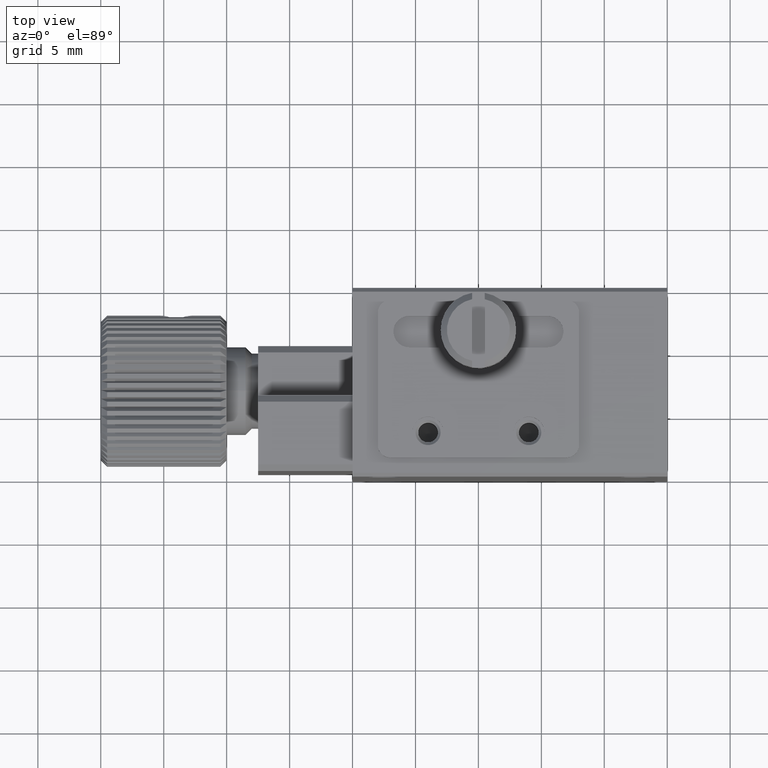
[diagram: clean part render]
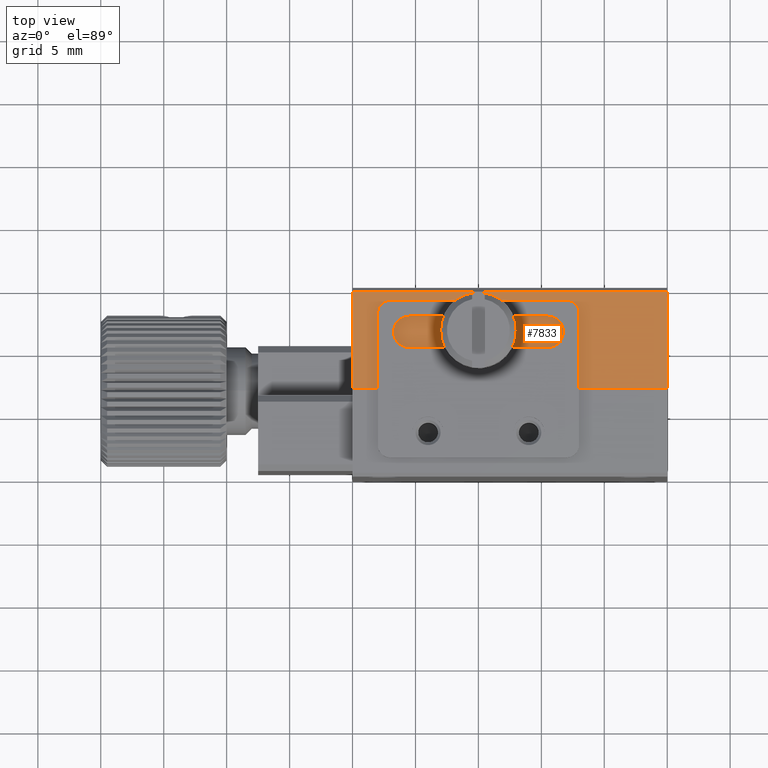
[diagram: same view with one face highlighted and labeled with its STEP entity id]
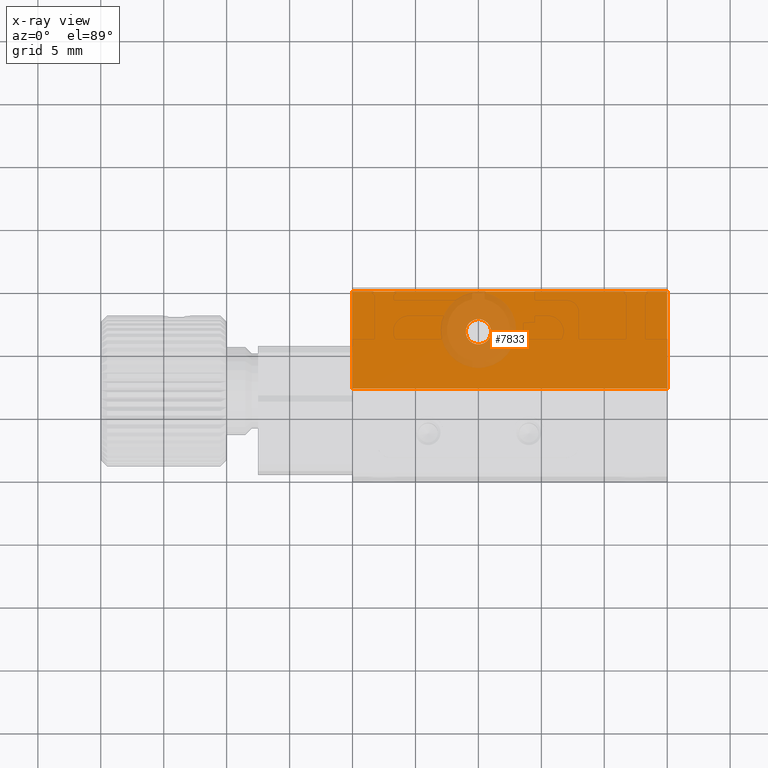
[diagram: x-ray of the same camera — body ghosted, the highlighted face saturated]
A machine part, top view. The second image highlights one B-rep face of the part: STEP entity #7833.
The next image is the same camera in x-ray: the body ghosted, the highlighted face saturated — about 13% of this face is hidden behind the body in this view.
In plain terms, the highlighted planar face has unit normal (0, -0, -1).
Its self-contained STEP definition (entity closure, byte-faithful):
#242 = CARTESIAN_POINT ( 'NONE',  ( 25.00000000000000000, 14.70000000000004725, -3.903127820947815962E-15 ) ) ;
#495 = VERTEX_POINT ( 'NONE', #10311 ) ;
#528 = VECTOR ( 'NONE', #5056, 1000.000000000000000 ) ;
#653 = VERTEX_POINT ( 'NONE', #2074 ) ;
#714 = DIRECTION ( 'NONE',  ( 0.000000000000000000, -1.000000000000000000, -0.000000000000000000 ) ) ;
#1061 = LINE ( 'NONE', #2820, #6210 ) ;
#1217 = EDGE_CURVE ( 'NONE', #495, #5687, #5470, .T. ) ;
#1328 = AXIS2_PLACEMENT_3D ( 'NONE', #6651, #10511, #1969 ) ;
#1402 = VERTEX_POINT ( 'NONE', #7071 ) ;
#1514 = VECTOR ( 'NONE', #7286, 1000.000000000000000 ) ;
#1969 = DIRECTION ( 'NONE',  ( -1.000000000000000000, 0.000000000000000000, 0.000000000000000000 ) ) ;
#2074 = CARTESIAN_POINT ( 'NONE',  ( 25.00000000000000000, 14.70000000000004725, -3.693551541006367955E-15 ) ) ;
#2288 = EDGE_LOOP ( 'NONE', ( #7051, #8464, #2677, #3765 ) ) ;
#2677 = ORIENTED_EDGE ( 'NONE', *, *, #5989, .T. ) ;
#2820 = CARTESIAN_POINT ( 'NONE',  ( 25.00000000000000000, 15.00000000000000000, -3.632077277826439854E-15 ) ) ;
#3207 = VECTOR ( 'NONE', #714, 1000.000000000000000 ) ;
#3313 = LINE ( 'NONE', #9275, #1514 ) ;
#3765 = ORIENTED_EDGE ( 'NONE', *, *, #1217, .T. ) ;
#3936 = LINE ( 'NONE', #242, #528 ) ;
#4971 = ORIENTED_EDGE ( 'NONE', *, *, #6275, .F. ) ;
#5056 = DIRECTION ( 'NONE',  ( -1.000000000000000000, -0.000000000000000000, -0.000000000000000000 ) ) ;
#5470 = LINE ( 'NONE', #9256, #3207 ) ;
#5540 = DIRECTION ( 'NONE',  ( 0.000000000000000000, -6.361801554012190564E-17, -1.000000000000000000 ) ) ;
#5596 = CARTESIAN_POINT ( 'NONE',  ( 25.00000000000000000, 14.70000000000004725, -3.552713678800500140E-15 ) ) ;
#5687 = VERTEX_POINT ( 'NONE', #8233 ) ;
#5792 = EDGE_LOOP ( 'NONE', ( #4971 ) ) ;
#5989 = EDGE_CURVE ( 'NONE', #653, #495, #3936, .T. ) ;
#6210 = VECTOR ( 'NONE', #8426, 1000.000000000000000 ) ;
#6275 = EDGE_CURVE ( 'NONE', #9776, #9776, #7507, .T. ) ;
#6651 = CARTESIAN_POINT ( 'NONE',  ( 10.00000000000000000, 11.50000000000000000, 0.000000000000000000 ) ) ;
#7051 = ORIENTED_EDGE ( 'NONE', *, *, #7215, .F. ) ;
#7071 = CARTESIAN_POINT ( 'NONE',  ( 25.00000000000000000, 6.999999999999999112, -3.205160538812779033E-15 ) ) ;
#7112 = AXIS2_PLACEMENT_3D ( 'NONE', #5596, #5540, #12258 ) ;
#7215 = EDGE_CURVE ( 'NONE', #1402, #5687, #3313, .T. ) ;
#7268 = CARTESIAN_POINT ( 'NONE',  ( 9.000000000000001776, 11.50000000000000000, 0.000000000000000000 ) ) ;
#7286 = DIRECTION ( 'NONE',  ( -1.000000000000000000, -0.000000000000000000, -0.000000000000000000 ) ) ;
#7507 = CIRCLE ( 'NONE', #1328, 0.9999999999999991118 ) ;
#7833 = ADVANCED_FACE ( 'NONE', ( #8334, #8744 ), #11614, .F. ) ;
#8233 = CARTESIAN_POINT ( 'NONE',  ( 0.000000000000000000, 6.999999999999999112, -3.205160538812779822E-15 ) ) ;
#8334 = FACE_OUTER_BOUND ( 'NONE', #2288, .T. ) ;
#8426 = DIRECTION ( 'NONE',  ( 0.000000000000000000, -1.000000000000000000, -0.000000000000000000 ) ) ;
#8464 = ORIENTED_EDGE ( 'NONE', *, *, #10850, .F. ) ;
#8744 = FACE_BOUND ( 'NONE', #5792, .T. ) ;
#9256 = CARTESIAN_POINT ( 'NONE',  ( 0.000000000000000000, 15.00000000000000000, -3.632077277826439854E-15 ) ) ;
#9275 = CARTESIAN_POINT ( 'NONE',  ( 25.00000000000000000, 6.999999999999999112, -3.062854959141558365E-15 ) ) ;
#9776 = VERTEX_POINT ( 'NONE', #7268 ) ;
#10311 = CARTESIAN_POINT ( 'NONE',  ( 0.000000000000000000, 14.70000000000004725, -3.747761649630643177E-15 ) ) ;
#10511 = DIRECTION ( 'NONE',  ( -0.000000000000000000, -0.000000000000000000, 1.000000000000000000 ) ) ;
#10850 = EDGE_CURVE ( 'NONE', #653, #1402, #1061, .T. ) ;
#11614 = PLANE ( 'NONE',  #7112 ) ;
#12258 = DIRECTION ( 'NONE',  ( 0.000000000000000000, 1.000000000000000000, -6.361801554012190564E-17 ) ) ;